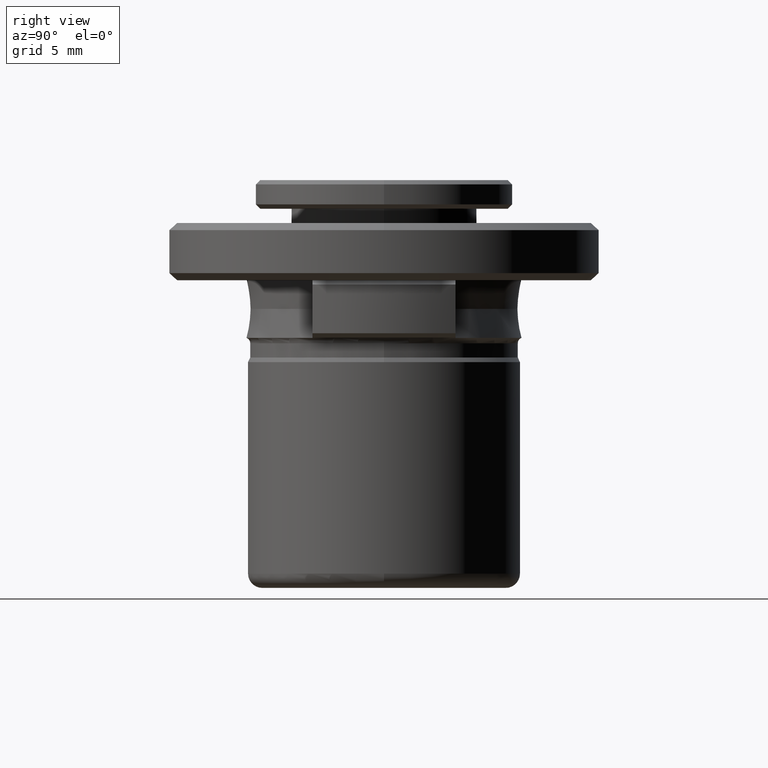
[diagram: clean part render]
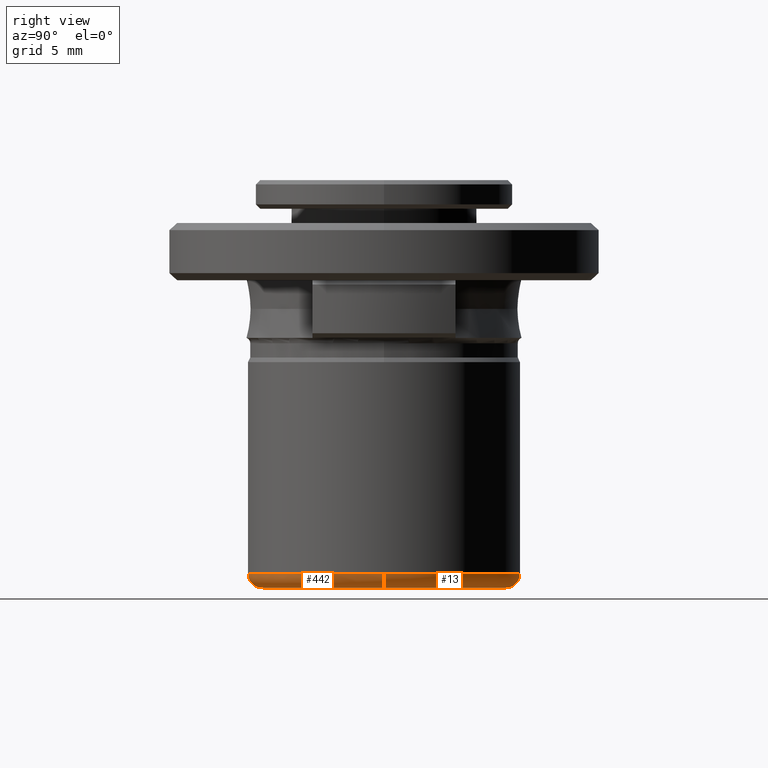
[diagram: same view with one multi-face feature highlighted, each face labeled with its STEP entity id]
A machine part, right view. The highlighted faces form ONE feature: a constant-radius fillet chain: 2 tangent blend faces with common blend radius 1 mm. The faces share edges in the B-rep.
Their STEP definitions:
[1] entity #442 (Torus):
#34 = DIRECTION ( 'NONE',  ( 0.0000000000000000000, -1.000000000000000000, 0.0000000000000000000 ) ) ;
#73 = CARTESIAN_POINT ( 'NONE',  ( 8.500000000000000000, 2.364620801796248300E-016, -12.75000000000000200 ) ) ;
#76 = CIRCLE ( 'NONE', #1214, 1.000000000000000900 ) ;
#112 = AXIS2_PLACEMENT_3D ( 'NONE', #308, #1680, #1277 ) ;
#145 = AXIS2_PLACEMENT_3D ( 'NONE', #832, #1771, #956 ) ;
#207 = EDGE_CURVE ( 'NONE', #910, #1419, #805, .T. ) ;
#230 = CIRCLE ( 'NONE', #587, 1.000000000000000900 ) ;
#256 = CARTESIAN_POINT ( 'NONE',  ( 0.0000000000000000000, 2.364620801796248300E-016, -12.75000000000000200 ) ) ;
#302 = CARTESIAN_POINT ( 'NONE',  ( 0.0000000000000000000, 2.364620801796248300E-016, -11.75000000000000000 ) ) ;
#308 = CARTESIAN_POINT ( 'NONE',  ( 0.0000000000000000000, 2.364620801796248300E-016, -11.75000000000000000 ) ) ;
#378 = ORIENTED_EDGE ( 'NONE', *, *, #207, .F. ) ;
#386 = CARTESIAN_POINT ( 'NONE',  ( -8.500000000000000000, 1.277411859454874900E-015, -11.75000000000000000 ) ) ;
#400 = DIRECTION ( 'NONE',  ( 1.000000000000000000, 0.0000000000000000000, 0.0000000000000000000 ) ) ;
#408 = TOROIDAL_SURFACE ( 'NONE', #112, 8.500000000000000000, 1.000000000000000000 ) ;
#442 = ADVANCED_FACE ( 'NONE', ( #1106 ), #408, .T. ) ;
#443 = DIRECTION ( 'NONE',  ( 1.000000000000000000, 0.0000000000000000000, 0.0000000000000000000 ) ) ;
#473 = CIRCLE ( 'NONE', #1743, 8.500000000000000000 ) ;
#493 = AXIS2_PLACEMENT_3D ( 'NONE', #302, #1267, #443 ) ;
#497 = VERTEX_POINT ( 'NONE', #585 ) ;
#513 = EDGE_CURVE ( 'NONE', #1186, #910, #662, .T. ) ;
#529 = EDGE_CURVE ( 'NONE', #640, #1419, #230, .T. ) ;
#533 = DIRECTION ( 'NONE',  ( -1.000000000000000000, 1.224646799147351500E-016, 0.0000000000000000000 ) ) ;
#585 = CARTESIAN_POINT ( 'NONE',  ( -8.500000000000000000, 1.338644199412242400E-015, -12.75000000000000200 ) ) ;
#587 = AXIS2_PLACEMENT_3D ( 'NONE', #884, #34, #1022 ) ;
#640 = VERTEX_POINT ( 'NONE', #73 ) ;
#662 = CIRCLE ( 'NONE', #493, 9.500000000000000000 ) ;
#787 = ORIENTED_EDGE ( 'NONE', *, *, #953, .F. ) ;
#805 = CIRCLE ( 'NONE', #145, 9.500000000000000000 ) ;
#813 = ORIENTED_EDGE ( 'NONE', *, *, #1325, .F. ) ;
#832 = CARTESIAN_POINT ( 'NONE',  ( 0.0000000000000000000, 2.364620801796248300E-016, -11.75000000000000000 ) ) ;
#884 = CARTESIAN_POINT ( 'NONE',  ( 8.500000000000000000, 2.364620801796248300E-016, -11.75000000000000000 ) ) ;
#910 = VERTEX_POINT ( 'NONE', #1623 ) ;
#953 = EDGE_CURVE ( 'NONE', #640, #497, #473, .T. ) ;
#956 = DIRECTION ( 'NONE',  ( 1.000000000000000000, 0.0000000000000000000, 0.0000000000000000000 ) ) ;
#1022 = DIRECTION ( 'NONE',  ( 0.0000000000000000000, 0.0000000000000000000, -1.000000000000000000 ) ) ;
#1059 = CARTESIAN_POINT ( 'NONE',  ( -9.500000000000001800, 1.399876539369610000E-015, -11.75000000000000000 ) ) ;
#1106 = FACE_OUTER_BOUND ( 'NONE', #1501, .T. ) ;
#1186 = VERTEX_POINT ( 'NONE', #1059 ) ;
#1214 = AXIS2_PLACEMENT_3D ( 'NONE', #386, #1357, #533 ) ;
#1223 = DIRECTION ( 'NONE',  ( -0.0000000000000000000, -0.0000000000000000000, -1.000000000000000000 ) ) ;
#1267 = DIRECTION ( 'NONE',  ( 0.0000000000000000000, 0.0000000000000000000, 1.000000000000000000 ) ) ;
#1277 = DIRECTION ( 'NONE',  ( 1.000000000000000000, 0.0000000000000000000, 0.0000000000000000000 ) ) ;
#1325 = EDGE_CURVE ( 'NONE', #497, #1186, #76, .T. ) ;
#1357 = DIRECTION ( 'NONE',  ( 1.224646799147353200E-016, 1.000000000000000000, -0.0000000000000000000 ) ) ;
#1397 = ORIENTED_EDGE ( 'NONE', *, *, #513, .F. ) ;
#1419 = VERTEX_POINT ( 'NONE', #1556 ) ;
#1501 = EDGE_LOOP ( 'NONE', ( #813, #787, #1509, #378, #1397 ) ) ;
#1509 = ORIENTED_EDGE ( 'NONE', *, *, #529, .T. ) ;
#1556 = CARTESIAN_POINT ( 'NONE',  ( 9.500000000000001800, 2.364620801796248300E-016, -11.75000000000000000 ) ) ;
#1623 = CARTESIAN_POINT ( 'NONE',  ( 0.0000000000000000000, -9.500000000000000000, -11.75000000000000000 ) ) ;
#1680 = DIRECTION ( 'NONE',  ( 0.0000000000000000000, 0.0000000000000000000, 1.000000000000000000 ) ) ;
#1743 = AXIS2_PLACEMENT_3D ( 'NONE', #256, #1223, #400 ) ;
#1771 = DIRECTION ( 'NONE',  ( 0.0000000000000000000, 0.0000000000000000000, 1.000000000000000000 ) ) ;
[2] entity #13 (Torus):
#13 = ADVANCED_FACE ( 'NONE', ( #1773 ), #1727, .T. ) ;
#34 = DIRECTION ( 'NONE',  ( 0.0000000000000000000, -1.000000000000000000, 0.0000000000000000000 ) ) ;
#41 = EDGE_CURVE ( 'NONE', #1419, #101, #262, .T. ) ;
#73 = CARTESIAN_POINT ( 'NONE',  ( 8.500000000000000000, 2.364620801796248300E-016, -12.75000000000000200 ) ) ;
#76 = CIRCLE ( 'NONE', #1214, 1.000000000000000900 ) ;
#101 = VERTEX_POINT ( 'NONE', #1254 ) ;
#124 = ORIENTED_EDGE ( 'NONE', *, *, #1609, .F. ) ;
#152 = ORIENTED_EDGE ( 'NONE', *, *, #1338, .F. ) ;
#216 = AXIS2_PLACEMENT_3D ( 'NONE', #380, #1295, #903 ) ;
#218 = ORIENTED_EDGE ( 'NONE', *, *, #41, .F. ) ;
#230 = CIRCLE ( 'NONE', #587, 1.000000000000000900 ) ;
#262 = CIRCLE ( 'NONE', #1453, 9.500000000000000000 ) ;
#380 = CARTESIAN_POINT ( 'NONE',  ( 0.0000000000000000000, 2.364620801796248300E-016, -11.75000000000000000 ) ) ;
#386 = CARTESIAN_POINT ( 'NONE',  ( -8.500000000000000000, 1.277411859454874900E-015, -11.75000000000000000 ) ) ;
#403 = CIRCLE ( 'NONE', #1402, 8.500000000000000000 ) ;
#497 = VERTEX_POINT ( 'NONE', #585 ) ;
#529 = EDGE_CURVE ( 'NONE', #640, #1419, #230, .T. ) ;
#533 = DIRECTION ( 'NONE',  ( -1.000000000000000000, 1.224646799147351500E-016, 0.0000000000000000000 ) ) ;
#585 = CARTESIAN_POINT ( 'NONE',  ( -8.500000000000000000, 1.338644199412242400E-015, -12.75000000000000200 ) ) ;
#587 = AXIS2_PLACEMENT_3D ( 'NONE', #884, #34, #1022 ) ;
#640 = VERTEX_POINT ( 'NONE', #73 ) ;
#704 = DIRECTION ( 'NONE',  ( -0.0000000000000000000, -0.0000000000000000000, -1.000000000000000000 ) ) ;
#778 = CARTESIAN_POINT ( 'NONE',  ( 0.0000000000000000000, 2.364620801796248300E-016, -11.75000000000000000 ) ) ;
#850 = CARTESIAN_POINT ( 'NONE',  ( 0.0000000000000000000, 2.364620801796248300E-016, -11.75000000000000000 ) ) ;
#884 = CARTESIAN_POINT ( 'NONE',  ( 8.500000000000000000, 2.364620801796248300E-016, -11.75000000000000000 ) ) ;
#903 = DIRECTION ( 'NONE',  ( 1.000000000000000000, 0.0000000000000000000, 0.0000000000000000000 ) ) ;
#911 = DIRECTION ( 'NONE',  ( 1.000000000000000000, 0.0000000000000000000, 0.0000000000000000000 ) ) ;
#978 = DIRECTION ( 'NONE',  ( 1.000000000000000000, 0.0000000000000000000, 0.0000000000000000000 ) ) ;
#1022 = DIRECTION ( 'NONE',  ( 0.0000000000000000000, 0.0000000000000000000, -1.000000000000000000 ) ) ;
#1059 = CARTESIAN_POINT ( 'NONE',  ( -9.500000000000001800, 1.399876539369610000E-015, -11.75000000000000000 ) ) ;
#1138 = ORIENTED_EDGE ( 'NONE', *, *, #1325, .T. ) ;
#1159 = CIRCLE ( 'NONE', #1271, 9.500000000000000000 ) ;
#1186 = VERTEX_POINT ( 'NONE', #1059 ) ;
#1214 = AXIS2_PLACEMENT_3D ( 'NONE', #386, #1357, #533 ) ;
#1254 = CARTESIAN_POINT ( 'NONE',  ( 1.163414459189985500E-015, 9.500000000000000000, -11.75000000000000000 ) ) ;
#1271 = AXIS2_PLACEMENT_3D ( 'NONE', #850, #1786, #978 ) ;
#1281 = EDGE_LOOP ( 'NONE', ( #152, #1138, #124, #218, #1354 ) ) ;
#1295 = DIRECTION ( 'NONE',  ( 0.0000000000000000000, 0.0000000000000000000, 1.000000000000000000 ) ) ;
#1325 = EDGE_CURVE ( 'NONE', #497, #1186, #76, .T. ) ;
#1338 = EDGE_CURVE ( 'NONE', #497, #640, #403, .T. ) ;
#1354 = ORIENTED_EDGE ( 'NONE', *, *, #529, .F. ) ;
#1357 = DIRECTION ( 'NONE',  ( 1.224646799147353200E-016, 1.000000000000000000, -0.0000000000000000000 ) ) ;
#1402 = AXIS2_PLACEMENT_3D ( 'NONE', #1510, #704, #1642 ) ;
#1419 = VERTEX_POINT ( 'NONE', #1556 ) ;
#1453 = AXIS2_PLACEMENT_3D ( 'NONE', #778, #1714, #911 ) ;
#1510 = CARTESIAN_POINT ( 'NONE',  ( 0.0000000000000000000, 2.364620801796248300E-016, -12.75000000000000200 ) ) ;
#1556 = CARTESIAN_POINT ( 'NONE',  ( 9.500000000000001800, 2.364620801796248300E-016, -11.75000000000000000 ) ) ;
#1609 = EDGE_CURVE ( 'NONE', #101, #1186, #1159, .T. ) ;
#1642 = DIRECTION ( 'NONE',  ( 1.000000000000000000, 0.0000000000000000000, 0.0000000000000000000 ) ) ;
#1714 = DIRECTION ( 'NONE',  ( 0.0000000000000000000, 0.0000000000000000000, 1.000000000000000000 ) ) ;
#1727 = TOROIDAL_SURFACE ( 'NONE', #216, 8.500000000000000000, 1.000000000000000000 ) ;
#1773 = FACE_OUTER_BOUND ( 'NONE', #1281, .T. ) ;
#1786 = DIRECTION ( 'NONE',  ( 0.0000000000000000000, 0.0000000000000000000, 1.000000000000000000 ) ) ;